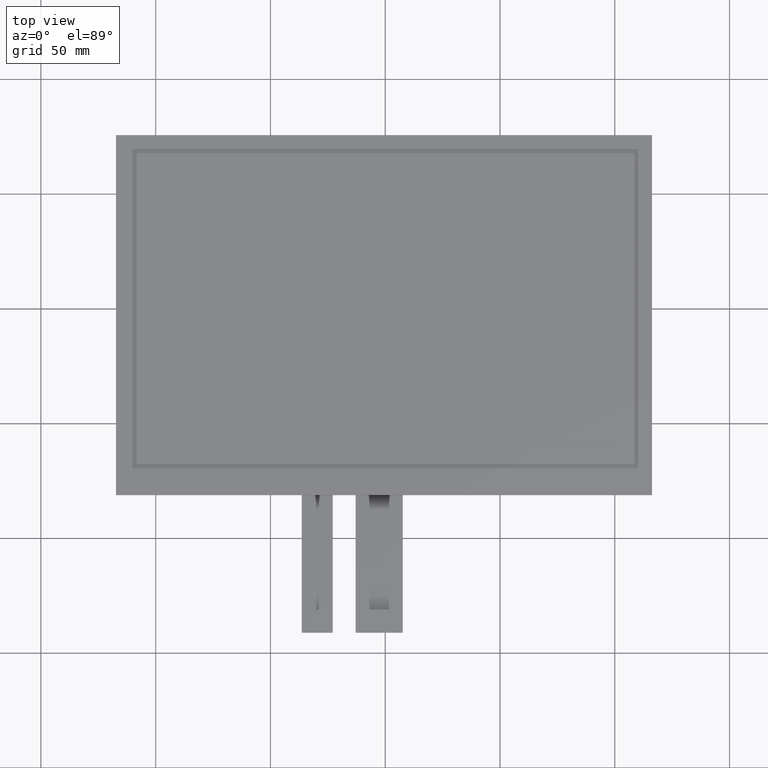
[diagram: clean part render]
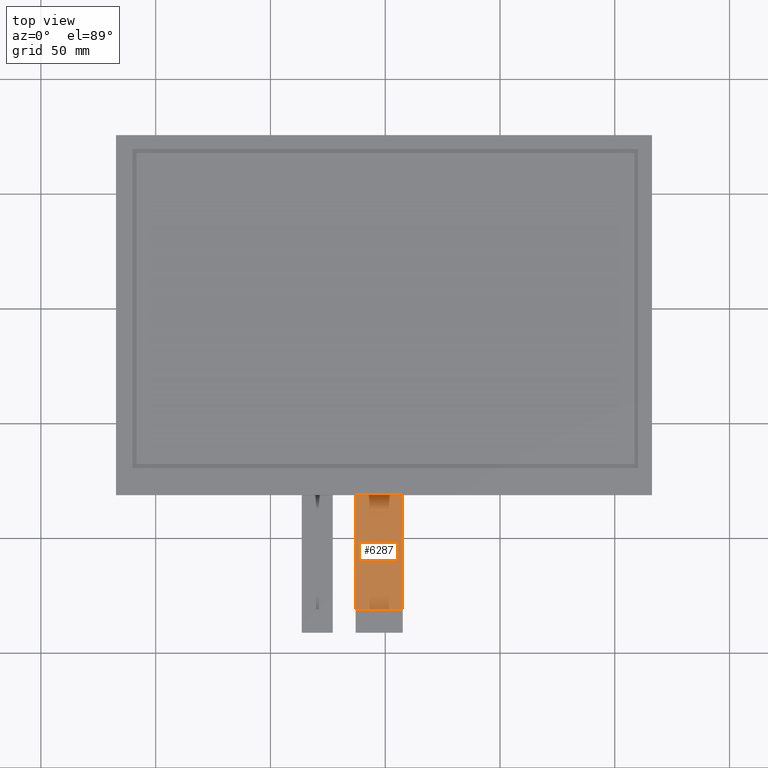
[diagram: same view with one face highlighted and labeled with its STEP entity id]
A machine part, top view. The second image highlights one B-rep face of the part: STEP entity #6287.
In plain terms, the highlighted planar face has unit normal (0, 0, 1).
Its self-contained STEP definition (entity closure, byte-faithful):
#349=PLANE('',#6617);
#651=FACE_OUTER_BOUND('',#953,.T.);
#953=EDGE_LOOP('',(#5905,#5906,#5907,#5908));
#1272=LINE('',#8750,#2152);
#1810=LINE('',#9826,#2690);
#1813=LINE('',#9831,#2693);
#1817=LINE('',#9839,#2697);
#2152=VECTOR('',#6972,10.);
#2690=VECTOR('',#8044,10.);
#2693=VECTOR('',#8049,10.);
#2697=VECTOR('',#8061,10.);
#3039=VERTEX_POINT('',#8747);
#3040=VERTEX_POINT('',#8749);
#3310=VERTEX_POINT('',#9823);
#3311=VERTEX_POINT('',#9825);
#3640=EDGE_CURVE('',#3040,#3039,#1272,.T.);
#4178=EDGE_CURVE('',#3311,#3310,#1810,.T.);
#4181=EDGE_CURVE('',#3310,#3040,#1813,.T.);
#4185=EDGE_CURVE('',#3311,#3039,#1817,.T.);
#5905=ORIENTED_EDGE('',*,*,#4181,.T.);
#5906=ORIENTED_EDGE('',*,*,#3640,.T.);
#5907=ORIENTED_EDGE('',*,*,#4185,.F.);
#5908=ORIENTED_EDGE('',*,*,#4178,.T.);
#6287=ADVANCED_FACE('',(#651),#349,.T.);
#6617=AXIS2_PLACEMENT_3D('',#9838,#8059,#8060);
#6972=DIRECTION('',(-3.70074341541719E-16,1.,0.));
#8044=DIRECTION('',(3.7007434154172E-16,-1.,0.));
#8049=DIRECTION('',(1.,0.,0.));
#8059=DIRECTION('center_axis',(0.,0.,1.));
#8060=DIRECTION('ref_axis',(1.,0.,0.));
#8061=DIRECTION('',(1.,1.52150478749486E-16,0.));
#8747=CARTESIAN_POINT('',(7.62000000000016,-81.2,-1.1));
#8749=CARTESIAN_POINT('',(7.62000000000019,-131.2,-1.1));
#8750=CARTESIAN_POINT('',(7.62000000000018,-141.2,-1.1));
#9823=CARTESIAN_POINT('',(-12.88,-131.2,-1.1));
#9825=CARTESIAN_POINT('',(-12.8799999999999,-81.2,-1.1));
#9826=CARTESIAN_POINT('',(-12.8799999999999,-81.2,-1.1));
#9831=CARTESIAN_POINT('',(2.49500000000015,-131.2,-1.1));
#9838=CARTESIAN_POINT('Origin',(-2.62999999999988,-111.2,-1.1));
#9839=CARTESIAN_POINT('',(56.7950000000001,-81.2,-1.1));